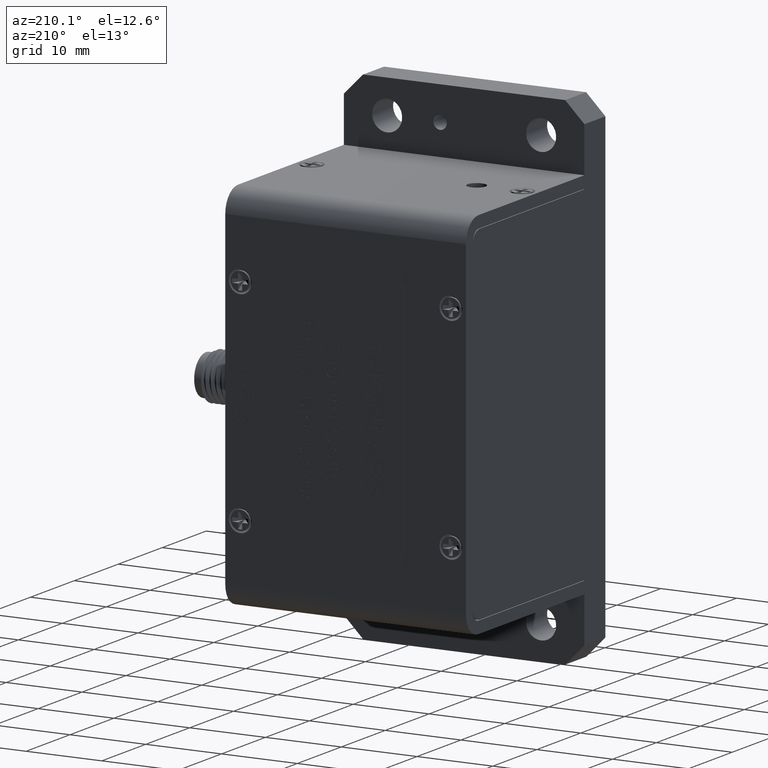
[diagram: clean part render]
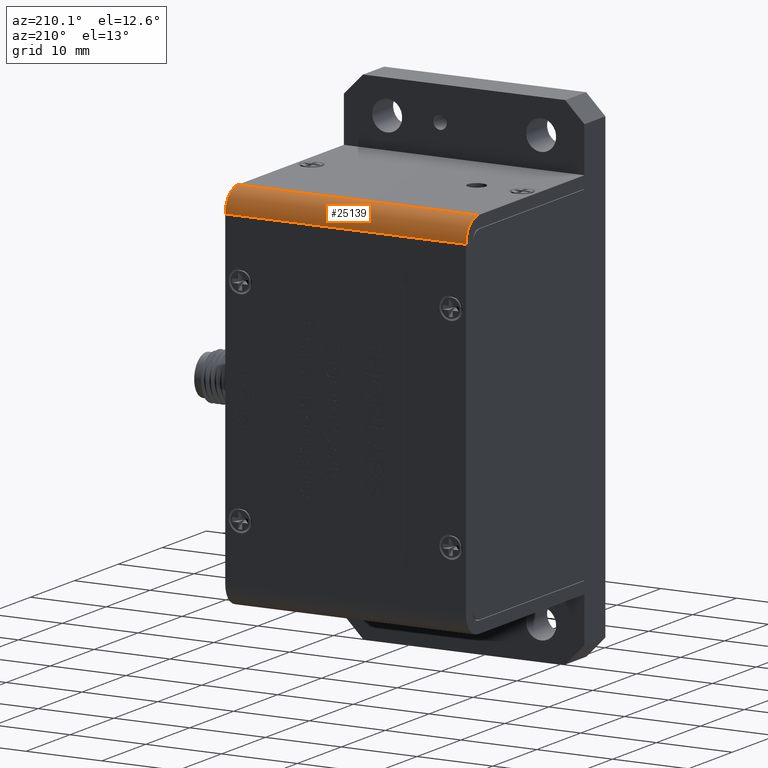
[diagram: same view with one face highlighted and labeled with its STEP entity id]
A machine part, auxiliary view. The second image highlights one B-rep face of the part: STEP entity #25139.
In plain terms, the highlighted cylindrical surface (edge-blend (fillet) strip) has radius 2.8575 mm, axis along (-1, -0, -0).
Its self-contained STEP definition (entity closure, byte-faithful):
#8664 = CARTESIAN_POINT ( 'NONE',  ( -15.87499999999999600, 31.76269999999999900, 21.65350000000000100 ) ) ;
#8949 = LINE ( 'NONE', #9038, #9037 ) ;
#9036 = DIRECTION ( 'NONE',  ( -1.000000000000000000, -0.0000000000000000000, -0.0000000000000000000 ) ) ;
#9037 = VECTOR ( 'NONE', #9036, 1000.000000000000000 ) ;
#9038 = CARTESIAN_POINT ( 'NONE',  ( 15.87500000000000400, 31.76269999999999900, 21.65350000000000100 ) ) ;
#12709 = VERTEX_POINT ( 'NONE', #8664 ) ;
#13167 = EDGE_CURVE ( 'NONE', #35672, #12709, #8949, .T. ) ;
#24971 = VERTEX_POINT ( 'NONE', #41216 ) ;
#24981 = VERTEX_POINT ( 'NONE', #40725 ) ;
#24987 = ORIENTED_EDGE ( 'NONE', *, *, #25016, .F. ) ;
#25016 = EDGE_CURVE ( 'NONE', #24981, #24971, #41300, .T. ) ;
#25118 = ORIENTED_EDGE ( 'NONE', *, *, #25138, .T. ) ;
#25131 = EDGE_LOOP ( 'NONE', ( #25118, #24987, #25360, #25332 ) ) ;
#25138 = EDGE_CURVE ( 'NONE', #12709, #24971, #41650, .T. ) ;
#25139 = ADVANCED_FACE ( 'NONE', ( #41651 ), #41607, .T. ) ;
#25332 = ORIENTED_EDGE ( 'NONE', *, *, #13167, .T. ) ;
#25360 = ORIENTED_EDGE ( 'NONE', *, *, #25361, .F. ) ;
#25361 = EDGE_CURVE ( 'NONE', #35672, #24981, #42254, .T. ) ;
#28029 = CARTESIAN_POINT ( 'NONE',  ( 15.87500000000000400, 31.76269999999999900, 21.65350000000000100 ) ) ;
#35672 = VERTEX_POINT ( 'NONE', #28029 ) ;
#40725 = CARTESIAN_POINT ( 'NONE',  ( 15.87500000000000400, 28.90520000000000100, 24.51100000000000600 ) ) ;
#41216 = CARTESIAN_POINT ( 'NONE',  ( -15.87499999999999600, 28.90520000000000100, 24.51100000000000600 ) ) ;
#41282 = CARTESIAN_POINT ( 'NONE',  ( 15.87500000000000400, 28.90520000000000100, 24.51100000000000600 ) ) ;
#41284 = VECTOR ( 'NONE', #41334, 1000.000000000000000 ) ;
#41300 = LINE ( 'NONE', #41282, #41284 ) ;
#41334 = DIRECTION ( 'NONE',  ( -1.000000000000000000, -0.0000000000000000000, -0.0000000000000000000 ) ) ;
#41607 = CYLINDRICAL_SURFACE ( 'NONE', #41610, 2.857499999999999000 ) ;
#41610 = AXIS2_PLACEMENT_3D ( 'NONE', #41653, #41634, #41633 ) ;
#41633 = DIRECTION ( 'NONE',  ( 0.0000000000000000000, 0.0000000000000000000, 1.000000000000000000 ) ) ;
#41634 = DIRECTION ( 'NONE',  ( -1.000000000000000000, -0.0000000000000000000, -0.0000000000000000000 ) ) ;
#41646 = DIRECTION ( 'NONE',  ( 0.0000000000000000000, 0.0000000000000000000, -1.000000000000000000 ) ) ;
#41647 = DIRECTION ( 'NONE',  ( 1.000000000000000000, 0.0000000000000000000, 0.0000000000000000000 ) ) ;
#41648 = CARTESIAN_POINT ( 'NONE',  ( -15.87499999999999600, 28.90520000000000100, 21.65350000000000100 ) ) ;
#41649 = AXIS2_PLACEMENT_3D ( 'NONE', #41648, #41647, #41646 ) ;
#41650 = CIRCLE ( 'NONE', #41649, 2.857499999999999000 ) ;
#41651 = FACE_OUTER_BOUND ( 'NONE', #25131, .T. ) ;
#41653 = CARTESIAN_POINT ( 'NONE',  ( 15.87500000000000400, 28.90520000000000100, 21.65350000000000100 ) ) ;
#42254 = CIRCLE ( 'NONE', #42276, 2.857499999999999000 ) ;
#42273 = DIRECTION ( 'NONE',  ( 0.0000000000000000000, 0.0000000000000000000, -1.000000000000000000 ) ) ;
#42274 = DIRECTION ( 'NONE',  ( 1.000000000000000000, 0.0000000000000000000, 0.0000000000000000000 ) ) ;
#42275 = CARTESIAN_POINT ( 'NONE',  ( 15.87500000000000400, 28.90520000000000100, 21.65350000000000100 ) ) ;
#42276 = AXIS2_PLACEMENT_3D ( 'NONE', #42275, #42274, #42273 ) ;